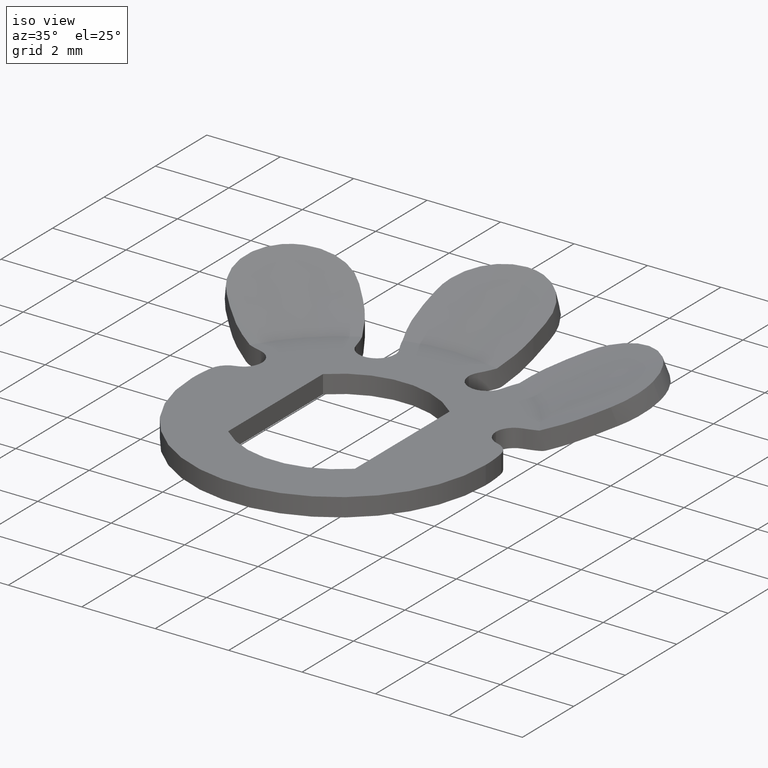
[diagram: clean part render]
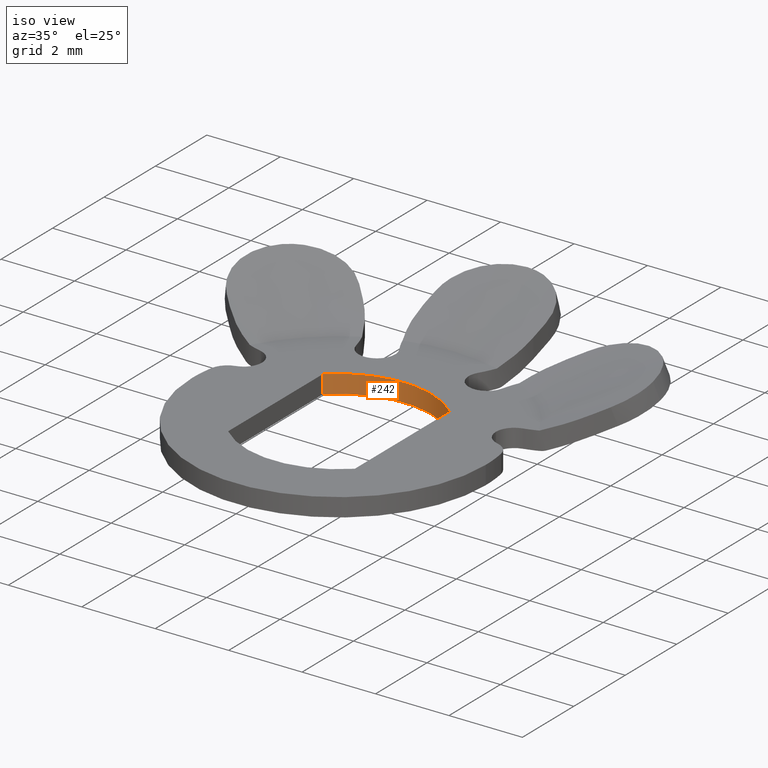
[diagram: same view with one face highlighted and labeled with its STEP entity id]
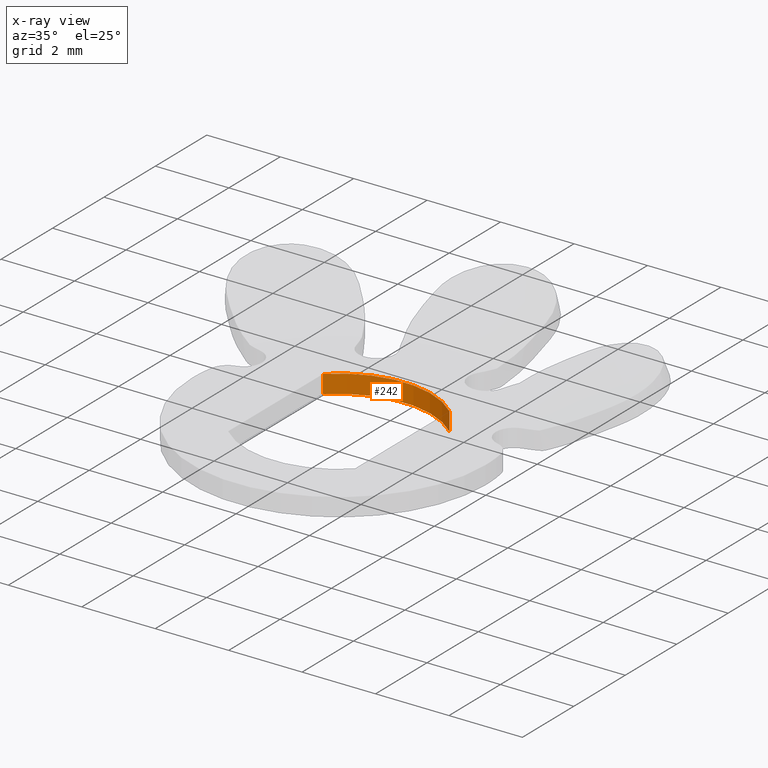
[diagram: x-ray of the same camera — body ghosted, the highlighted face saturated]
A machine part, iso view. The second image highlights one B-rep face of the part: STEP entity #242.
The next image is the same camera in x-ray: the body ghosted, the highlighted face saturated — about 0% of this face is hidden behind the body in this view.
In plain terms, the highlighted cylindrical surface (partial cylindrical patch) has radius 2.525 mm, axis along (0, 0, -1).
Its self-contained STEP definition (entity closure, byte-faithful):
#234 = AXIS2_PLACEMENT_3D ( 'NONE', #972, #1629, #706 ) ;
#242 = ADVANCED_FACE ( 'NONE', ( #1634 ), #1205, .F. ) ;
#264 = ORIENTED_EDGE ( 'NONE', *, *, #1127, .T. ) ;
#318 = EDGE_LOOP ( 'NONE', ( #264, #1086, #349, #1719 ) ) ;
#349 = ORIENTED_EDGE ( 'NONE', *, *, #1517, .F. ) ;
#396 = CIRCLE ( 'NONE', #1710, 2.524999999999999900 ) ;
#400 = CARTESIAN_POINT ( 'NONE',  ( -1.724999999999999600, 1.843908891458577500, 0.5000000000000002200 ) ) ;
#411 = CARTESIAN_POINT ( 'NONE',  ( 1.724999999999999900, 1.843908891458577100, 0.0000000000000000000 ) ) ;
#698 = DIRECTION ( 'NONE',  ( 0.0000000000000000000, 0.0000000000000000000, -1.000000000000000000 ) ) ;
#706 = DIRECTION ( 'NONE',  ( -1.000000000000000000, 0.0000000000000000000, 0.0000000000000000000 ) ) ;
#786 = DIRECTION ( 'NONE',  ( -1.000000000000000000, 8.881784197001252300E-016, 0.0000000000000000000 ) ) ;
#790 = LINE ( 'NONE', #1088, #1589 ) ;
#806 = EDGE_CURVE ( 'NONE', #1599, #1151, #1471, .T. ) ;
#835 = CARTESIAN_POINT ( 'NONE',  ( 1.724999999999999900, 1.843908891458577100, 0.5000000000000002200 ) ) ;
#907 = VERTEX_POINT ( 'NONE', #411 ) ;
#924 = DIRECTION ( 'NONE',  ( -0.0000000000000000000, -0.0000000000000000000, 1.000000000000000000 ) ) ;
#972 = CARTESIAN_POINT ( 'NONE',  ( -5.401456761889874900E-019, 0.0000000000000000000, 1.500000000000000000 ) ) ;
#1077 = VECTOR ( 'NONE', #698, 1000.000000000000000 ) ;
#1086 = ORIENTED_EDGE ( 'NONE', *, *, #806, .T. ) ;
#1088 = CARTESIAN_POINT ( 'NONE',  ( 1.724999999999999900, 1.843908891458577100, 1.500000000000000000 ) ) ;
#1119 = DIRECTION ( 'NONE',  ( 0.0000000000000000000, 0.0000000000000000000, -1.000000000000000000 ) ) ;
#1127 = EDGE_CURVE ( 'NONE', #1304, #1599, #1491, .T. ) ;
#1151 = VERTEX_POINT ( 'NONE', #1668 ) ;
#1170 = CARTESIAN_POINT ( 'NONE',  ( -5.401456761889874900E-019, 0.0000000000000000000, 0.0000000000000000000 ) ) ;
#1171 = CARTESIAN_POINT ( 'NONE',  ( -1.724999999999999600, 1.843908891458577500, 1.500000000000000000 ) ) ;
#1205 = CYLINDRICAL_SURFACE ( 'NONE', #234, 2.524999999999999900 ) ;
#1280 = DIRECTION ( 'NONE',  ( 1.000000000000000000, 0.0000000000000000000, 0.0000000000000000000 ) ) ;
#1285 = DIRECTION ( 'NONE',  ( 0.0000000000000000000, 0.0000000000000000000, 1.000000000000000000 ) ) ;
#1304 = VERTEX_POINT ( 'NONE', #835 ) ;
#1315 = AXIS2_PLACEMENT_3D ( 'NONE', #1515, #924, #786 ) ;
#1371 = EDGE_CURVE ( 'NONE', #1304, #907, #790, .T. ) ;
#1471 = LINE ( 'NONE', #1171, #1077 ) ;
#1491 = CIRCLE ( 'NONE', #1315, 2.524999999999999900 ) ;
#1515 = CARTESIAN_POINT ( 'NONE',  ( -5.401456761889874900E-019, 0.0000000000000000000, 0.5000000000000002200 ) ) ;
#1517 = EDGE_CURVE ( 'NONE', #907, #1151, #396, .T. ) ;
#1589 = VECTOR ( 'NONE', #1119, 1000.000000000000000 ) ;
#1599 = VERTEX_POINT ( 'NONE', #400 ) ;
#1629 = DIRECTION ( 'NONE',  ( 0.0000000000000000000, 0.0000000000000000000, -1.000000000000000000 ) ) ;
#1634 = FACE_OUTER_BOUND ( 'NONE', #318, .T. ) ;
#1668 = CARTESIAN_POINT ( 'NONE',  ( -1.724999999999999600, 1.843908891458577500, 0.0000000000000000000 ) ) ;
#1710 = AXIS2_PLACEMENT_3D ( 'NONE', #1170, #1285, #1280 ) ;
#1719 = ORIENTED_EDGE ( 'NONE', *, *, #1371, .F. ) ;